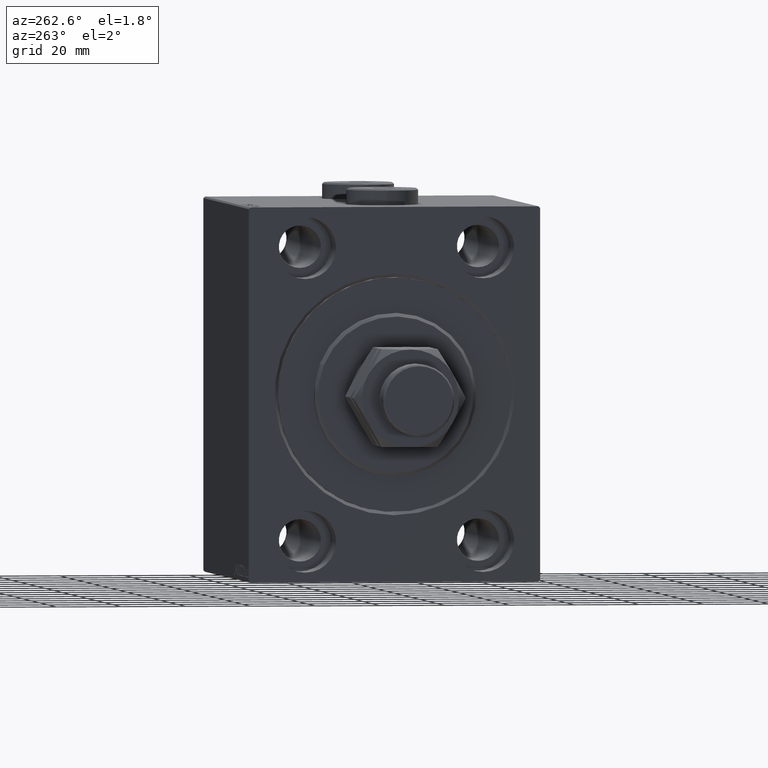
[diagram: clean part render]
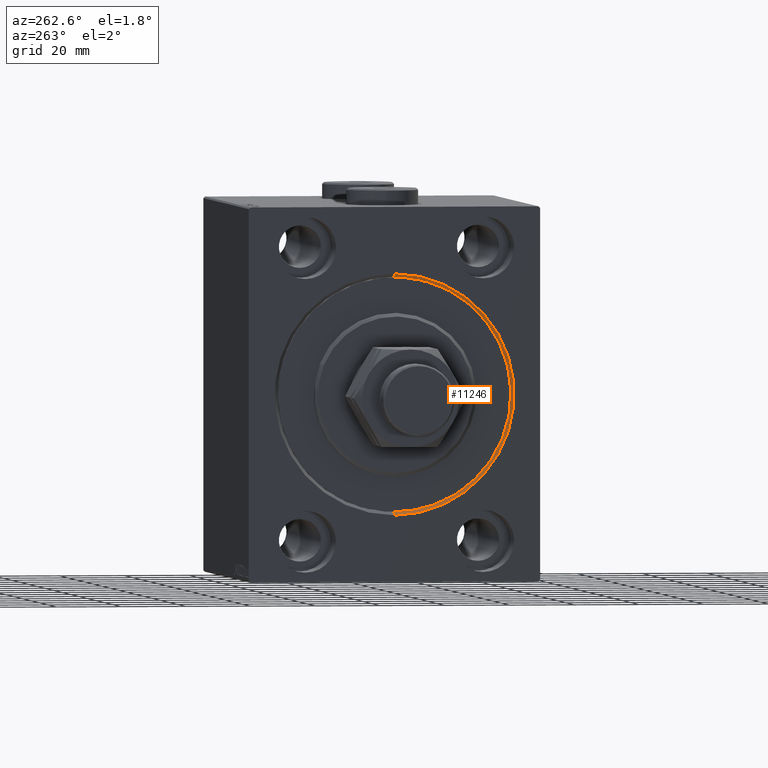
[diagram: same view with one face highlighted and labeled with its STEP entity id]
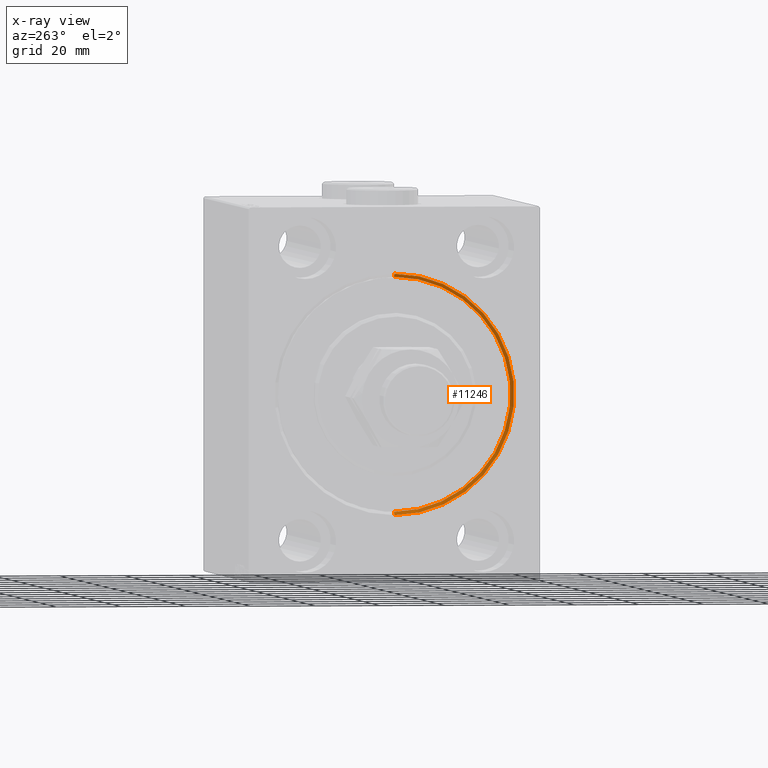
[diagram: x-ray of the same camera — body ghosted, the highlighted face saturated]
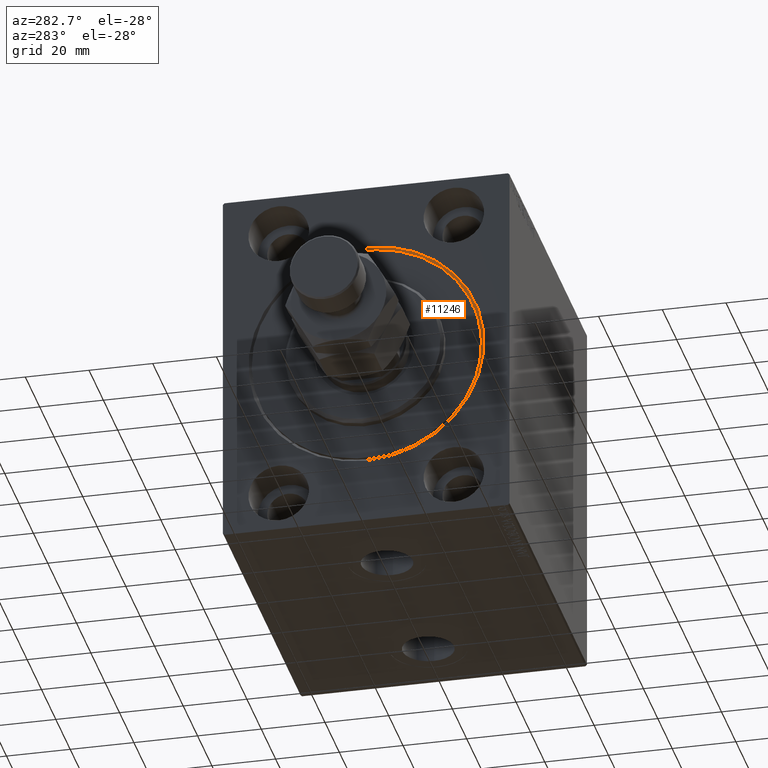
[diagram: same view with one face highlighted and labeled with its STEP entity id]
A machine part, auxiliary view. The second image highlights one B-rep face of the part: STEP entity #11246.
The next image is the same camera in x-ray: the body ghosted, the highlighted face saturated — about 0% of this face is hidden behind the body in this view.
A second angle (auxiliary view) of the same face is appended — the face is thin or edge-on in the first view.
In plain terms, the highlighted conical surface has half-angle 45 deg.
Its self-contained STEP definition (entity closure, byte-faithful):
#2041 = DIRECTION ( 'NONE',  ( -1.000000000000000000, 0.000000000000000000, 0.000000000000000000 ) ) ;
#2107 = CARTESIAN_POINT ( 'NONE',  ( 1.000000000000021760, 0.000000000000000000, 0.000000000000000000 ) ) ;
#3145 = EDGE_CURVE ( 'NONE', #15762, #5339, #25702, .T. ) ;
#4752 = ORIENTED_EDGE ( 'NONE', *, *, #3145, .T. ) ;
#4776 = CONICAL_SURFACE ( 'NONE', #31369, 36.00000000000000000, 0.7853981633974552734 ) ;
#4817 = CARTESIAN_POINT ( 'NONE',  ( 0.000000000000000000, 0.000000000000000000, 37.00000000000003553 ) ) ;
#5339 = VERTEX_POINT ( 'NONE', #25401 ) ;
#7776 = VECTOR ( 'NONE', #17427, 999.9999999999998863 ) ;
#9431 = CARTESIAN_POINT ( 'NONE',  ( 1.000000000000021760, 0.000000000000000000, 36.00000000000000000 ) ) ;
#11246 = ADVANCED_FACE ( 'NONE', ( #20181 ), #4776, .F. ) ;
#12470 = EDGE_CURVE ( 'NONE', #15762, #38363, #27600, .T. ) ;
#13047 = VECTOR ( 'NONE', #43533, 999.9999999999998863 ) ;
#15762 = VERTEX_POINT ( 'NONE', #46774 ) ;
#15830 = DIRECTION ( 'NONE',  ( 0.000000000000000000, 0.000000000000000000, -1.000000000000000000 ) ) ;
#16849 = EDGE_LOOP ( 'NONE', ( #27207, #4752, #37157, #41908 ) ) ;
#16968 = AXIS2_PLACEMENT_3D ( 'NONE', #19863, #2041, #15830 ) ;
#17203 = VERTEX_POINT ( 'NONE', #4817 ) ;
#17427 = DIRECTION ( 'NONE',  ( -0.7071067811865425767, 0.000000000000000000, 0.7071067811865525687 ) ) ;
#17653 = LINE ( 'NONE', #32395, #7776 ) ;
#19717 = DIRECTION ( 'NONE',  ( 0.000000000000000000, 0.000000000000000000, -1.000000000000000000 ) ) ;
#19863 = CARTESIAN_POINT ( 'NONE',  ( 1.000000000000021760, 0.000000000000000000, 0.000000000000000000 ) ) ;
#19950 = CARTESIAN_POINT ( 'NONE',  ( 0.000000000000000000, 0.000000000000000000, 0.000000000000000000 ) ) ;
#20181 = FACE_OUTER_BOUND ( 'NONE', #16849, .T. ) ;
#21119 = DIRECTION ( 'NONE',  ( 0.000000000000000000, 0.000000000000000000, 1.000000000000000000 ) ) ;
#25401 = CARTESIAN_POINT ( 'NONE',  ( 0.000000000000000000, 4.531193156845210737E-15, -37.00000000000003553 ) ) ;
#25702 = LINE ( 'NONE', #40183, #13047 ) ;
#27207 = ORIENTED_EDGE ( 'NONE', *, *, #12470, .F. ) ;
#27600 = CIRCLE ( 'NONE', #16968, 36.00000000000000000 ) ;
#31115 = DIRECTION ( 'NONE',  ( -1.000000000000000000, 0.000000000000000000, 0.000000000000000000 ) ) ;
#31369 = AXIS2_PLACEMENT_3D ( 'NONE', #2107, #31115, #21119 ) ;
#32395 = CARTESIAN_POINT ( 'NONE',  ( 1.000000000000021760, 0.000000000000000000, 36.00000000000000000 ) ) ;
#37157 = ORIENTED_EDGE ( 'NONE', *, *, #38819, .F. ) ;
#37722 = EDGE_CURVE ( 'NONE', #38363, #17203, #17653, .T. ) ;
#37763 = DIRECTION ( 'NONE',  ( 1.000000000000000000, 0.000000000000000000, 0.000000000000000000 ) ) ;
#38363 = VERTEX_POINT ( 'NONE', #9431 ) ;
#38819 = EDGE_CURVE ( 'NONE', #17203, #5339, #42721, .T. ) ;
#40183 = CARTESIAN_POINT ( 'NONE',  ( 1.000000000000021760, 4.408728476930470856E-15, -36.00000000000000000 ) ) ;
#41169 = AXIS2_PLACEMENT_3D ( 'NONE', #19950, #37763, #19717 ) ;
#41908 = ORIENTED_EDGE ( 'NONE', *, *, #37722, .F. ) ;
#42721 = CIRCLE ( 'NONE', #41169, 37.00000000000003553 ) ;
#43533 = DIRECTION ( 'NONE',  ( -0.7071067811865425767, 8.659560562354994488E-17, -0.7071067811865525687 ) ) ;
#46774 = CARTESIAN_POINT ( 'NONE',  ( 1.000000000000021760, 4.408728476930470856E-15, -36.00000000000000000 ) ) ;